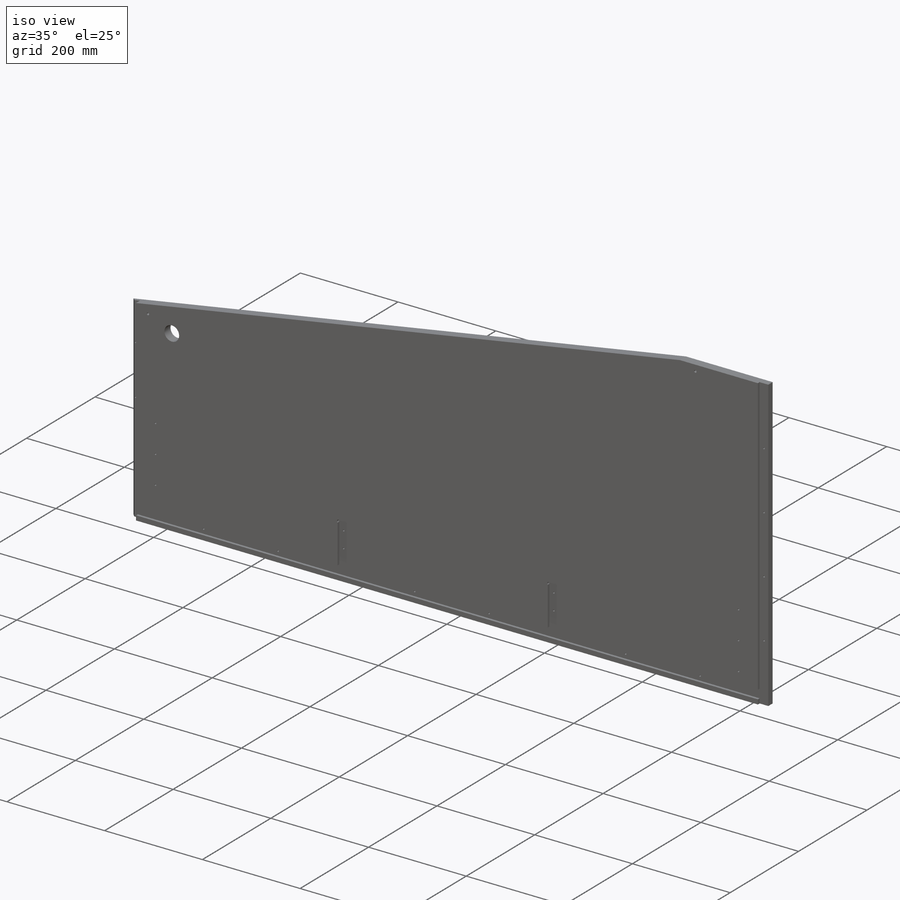
[diagram: iso view]
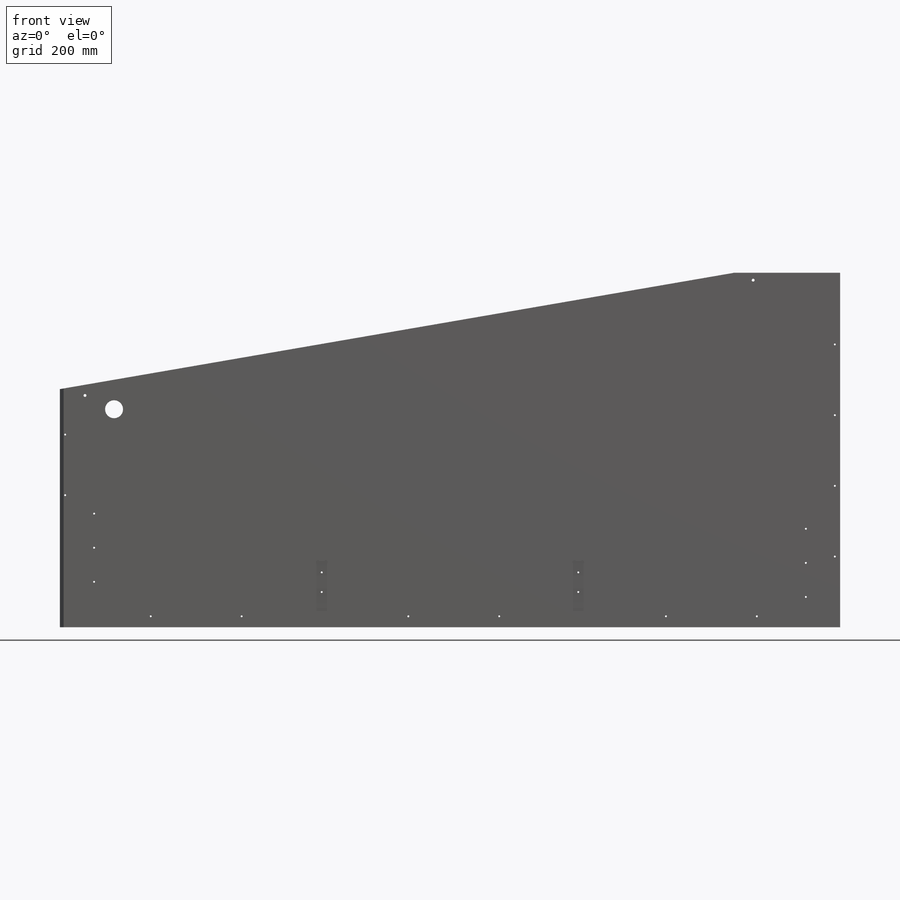
[diagram: front view]
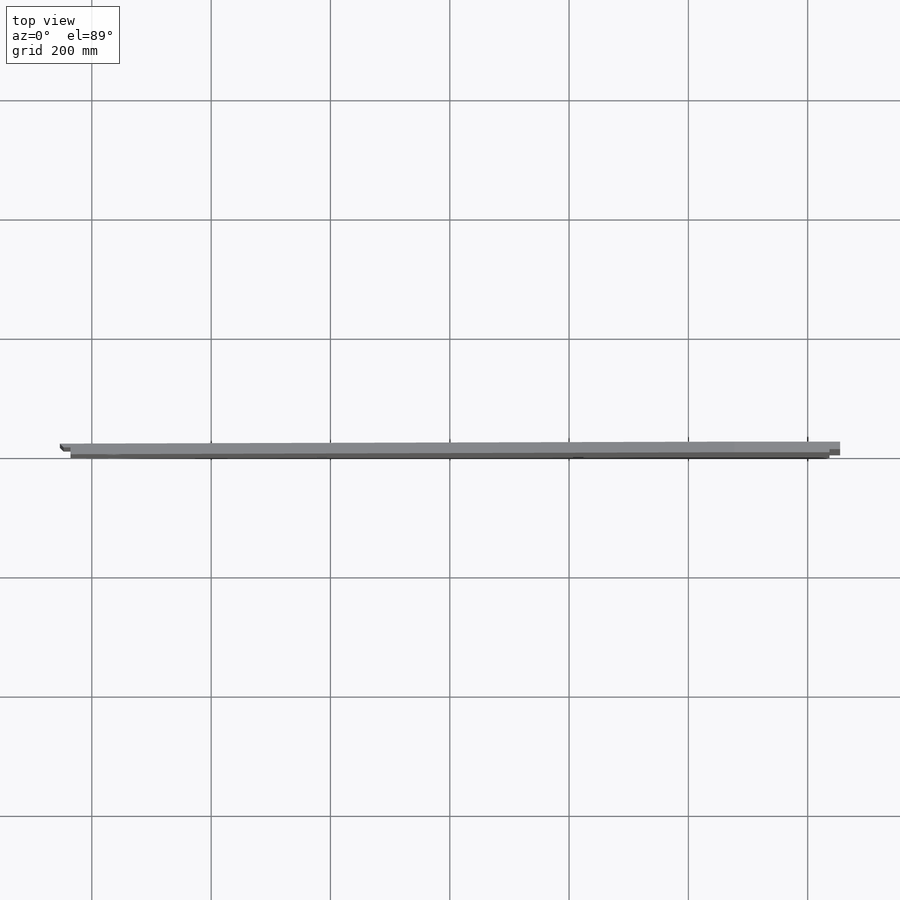
[diagram: top view]
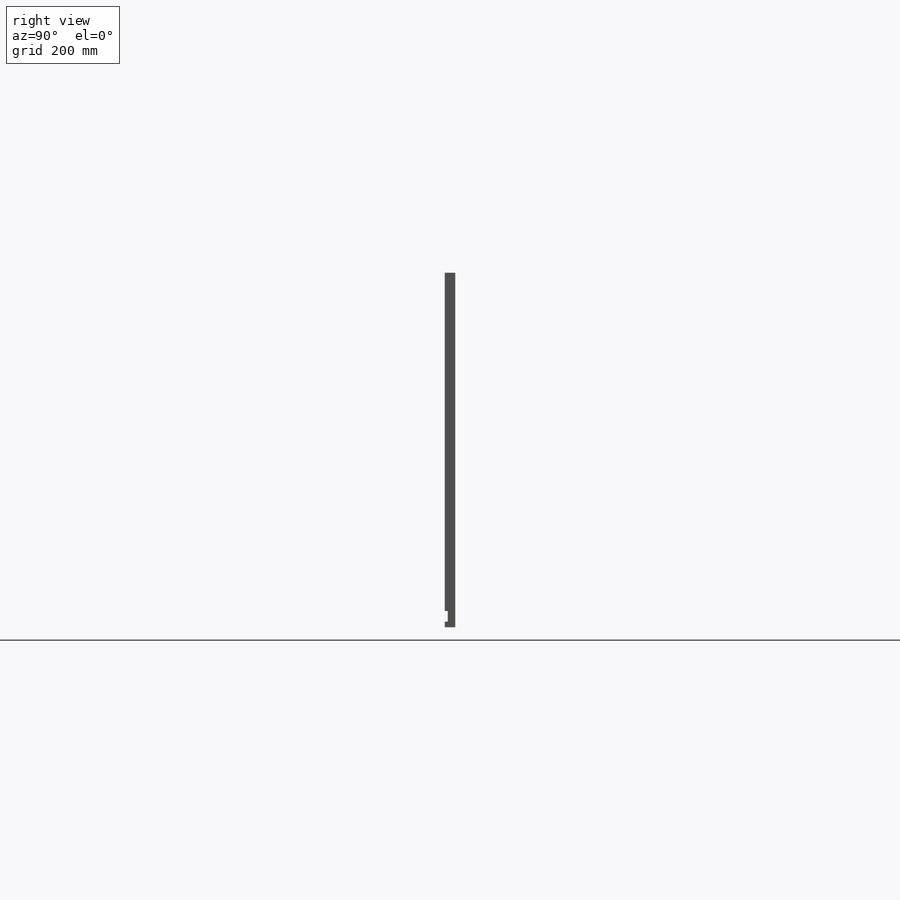
[diagram: right view]
SOLIDWORKS PART (.sldprt)
format: sldprt  version: not decoded by parser v0  size: 2,613,248 bytes
history: native  units: mm
features: sketch x11, cut_extrude x9, material x1, extrude x1 + 1 further entry (+15 scaffold rows collapsed)
feature tree (38):
  scaffold x15  (default folders/planes/origin — collapsed)
  material  "Maple"
  "Design Table"
  sketch  "Sketch1"
  sketch  "CabSideLeft_Outline"  dims[CabSideLeft_Length=1308.1mm CabSideLeft_Front=~399.25625mm CabSideLeft_BackHeight=594.36mm CabSideLeft_SlopeLength=1147.445mm]
  extrude  "CabSideLeft_Thickness"  Depth=17.78mm
  sketch  "CabSideLeft_LedgeCuts"  dims[BottomThickness=17.78mm BraceThickness_1=17.78mm BraceThickness_2=17.78mm BackThickness=17.78mm]
  cut_extrude  "LedgeCuts_Depth"  Depth=5.08mm
  sketch  "CabFrontLedgeCut"  dims[Front_Thickness=17.78mm]
  cut_extrude  "FrontLedgeCut_Depth"  Depth=11.43mm
  sketch  "Sketch5"  dims[D1=~5.741016mm]
  cut_extrude  "Cut-Extrude3"  [1 undecoded]
  sketch  "Sketch6"  dims[c1.D1=3.175mm c2.D1=45.0deg c3.D1=3.175mm c4.D1=315.0deg c5.D1=3.175mm c6.D1=135.0deg c7.D1=3.175mm c8.D1=45.0deg c9.D1=3.175mm c10.D1=45.0deg c11.D1=3.175mm c12.D1=135.0deg c13.D1=3.175mm c14.D1=135.0deg c15.D1=~2.245064mm c16.D1=45.0deg c16.D2=3.175mm c16.D3=~2.245064mm c17.D3=45.0deg c17.D4=3.175mm c17.D5=3.175mm c18.D5=45.0deg c18.D6=~2.245064mm c19.D6=45.0deg c19.D7=3.175mm c19.D8=3.175mm]
  cut_extrude  "Cut-Extrude4"  [1 undecoded]
  sketch  "FrontBevelCut"  dims[Front_Thickness=17.78mm]
  cut_extrude  "Cut-Extrude5"  [1 undecoded]
  sketch  "Sketch8"
  cut_extrude  "Cut-Extrude6"  [1 undecoded]
  sketch  "Sketch9"
  cut_extrude  "Cut-Extrude7"  Depth=12.7mm
  sketch  "Sketch10"  dims[D1=7.1755mm]
  cut_extrude  "Cut-Extrude8"  Depth=76.2mm
  sketch  "Sketch11"  dims[D1=7.1755mm]
  cut_extrude  "Cut-Extrude9"  Depth=76.2mm
decode coverage: 14 of 21 modeling features carry decoded parameters; 1 rows unclassified (native names shown)
note: ~ marks probable driven/reference dimensions
note: 4 parameter values undecoded
summary: no parameter record found for 4 features
note: suppression state not decoded; provenance and decode notes live in map.json
